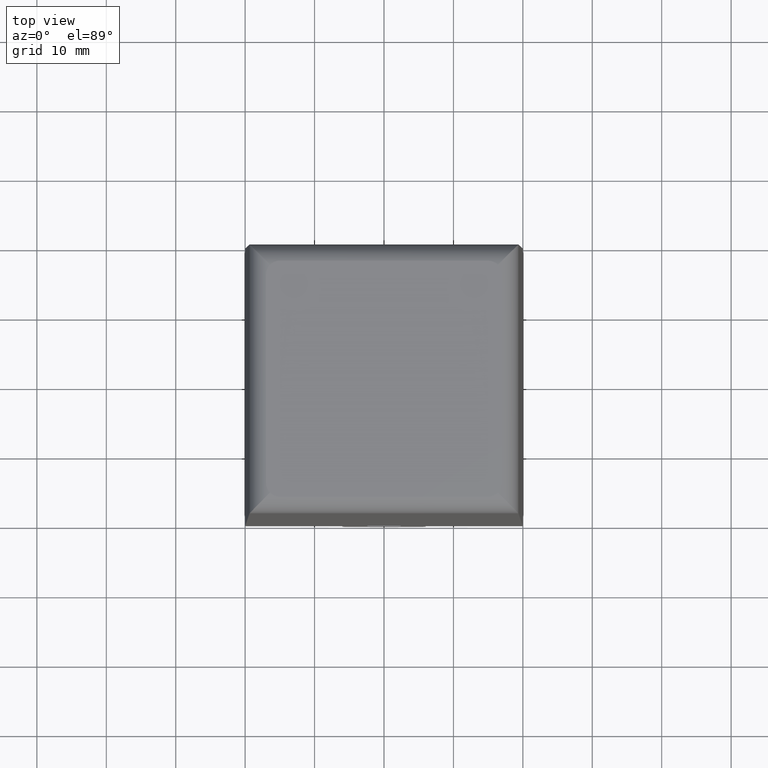
[diagram: clean part render]
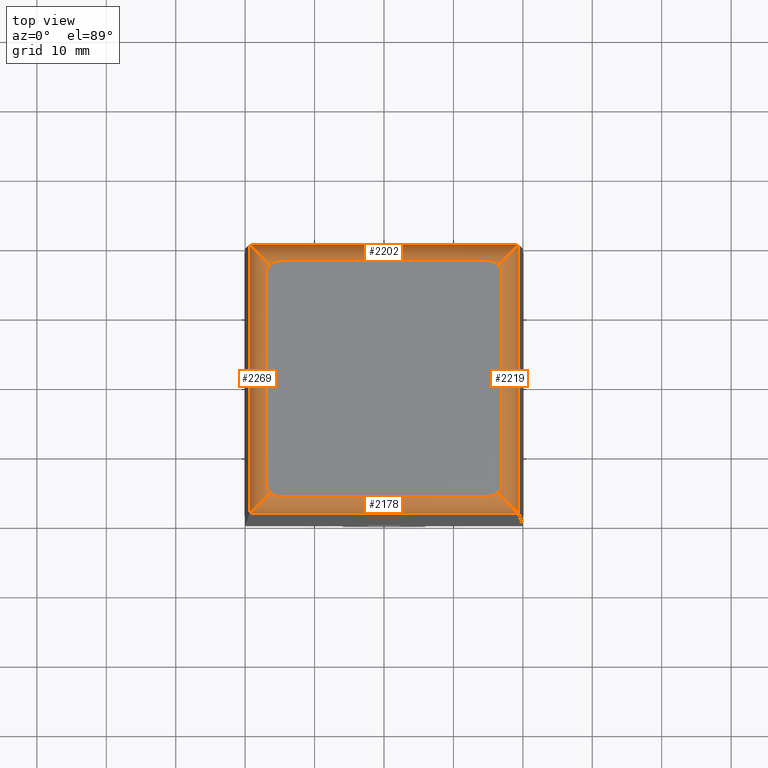
[diagram: same view with one multi-face feature highlighted, each face labeled with its STEP entity id]
A machine part, top view. The highlighted faces form ONE feature: a constant-radius fillet chain: 4 tangent blend faces with common blend radius 3 mm. The faces share edges in the B-rep.
Their STEP definitions:
[1] entity #2202 (Cylinder):
#199=CARTESIAN_POINT('',(16.376775983391202,16.376775983369143,68.238724886063693));
#200=VERTEX_POINT('',#199);
#201=CARTESIAN_POINT('',(-16.376775983404361,16.376775983369143,68.238724886060965));
#202=VERTEX_POINT('',#201);
#203=CARTESIAN_POINT('',(16.376775983391198,16.376775983369157,68.238724886063821));
#204=DIRECTION('',(-1.0,0.0,0.0));
#205=VECTOR('',#204,32.753551966795555);
#206=LINE('',#203,#205);
#207=EDGE_CURVE('',#200,#202,#206,.T.);
#2123=CARTESIAN_POINT('',(-19.376655419923193,19.376655419889271,65.265620356871992));
#2124=VERTEX_POINT('',#2123);
#2131=CARTESIAN_POINT('',(19.376655419910481,19.376655419889271,65.265620356875402));
#2132=VERTEX_POINT('',#2131);
#2133=CARTESIAN_POINT('',(19.376655419910481,19.376655419889733,65.265620356875345));
#2134=DIRECTION('',(-1.0,0.0,0.0));
#2135=VECTOR('',#2134,38.753310839833674);
#2136=LINE('',#2133,#2135);
#2137=EDGE_CURVE('',#2132,#2124,#2136,.T.);
#2179=CARTESIAN_POINT('',(19.999999999994916,16.376775983370049,65.238724886064148));
#2180=DIRECTION('',(-1.0,4.196099E-015,-8.877621E-014));
#2181=DIRECTION('',(-6.010007E-014,0.703929983401233,0.710269370357993));
#2182=AXIS2_PLACEMENT_3D('',#2179,#2180,#2181);
#2183=CYLINDRICAL_SURFACE('',#2182,2.999999999999969);
#2184=CARTESIAN_POINT('',(16.376775983391493,16.376775983370049,65.238724886063920));
#2185=DIRECTION('',(-0.707106781186540,0.707106781186555,2.162687E-013));
#2186=DIRECTION('',(0.707106781186555,0.707106781186540,3.417143E-013));
#2187=AXIS2_PLACEMENT_3D('',#2184,#2185,#2186);
#2188=ELLIPSE('',#2187,4.242640687119272,2.999999999999970);
#2189=EDGE_CURVE('',#200,#2132,#2188,.T.);
#2190=ORIENTED_EDGE('',*,*,#2189,.T.);
#2191=ORIENTED_EDGE('',*,*,#2137,.T.);
#2192=CARTESIAN_POINT('',(-16.376775983404055,16.376775983370504,65.238724886060965));
#2193=DIRECTION('',(0.707106781186546,0.707106781186550,3.418194E-013));
#2194=DIRECTION('',(-0.707106781186550,0.707106781186545,2.161658E-013));
#2195=AXIS2_PLACEMENT_3D('',#2192,#2193,#2194);
#2196=ELLIPSE('',#2195,4.242640687119272,2.999999999999970);
#2197=EDGE_CURVE('',#2124,#202,#2196,.T.);
#2198=ORIENTED_EDGE('',*,*,#2197,.T.);
#2199=ORIENTED_EDGE('',*,*,#207,.F.);
#2200=EDGE_LOOP('',(#2190,#2191,#2198,#2199));
#2201=FACE_OUTER_BOUND('',#2200,.T.);
#2202=ADVANCED_FACE('',(#2201),#2183,.T.);
[2] entity #2219 (Cylinder):
#199=CARTESIAN_POINT('',(16.376775983391202,16.376775983369143,68.238724886063693));
#200=VERTEX_POINT('',#199);
#217=CARTESIAN_POINT('',(16.376775983391166,-16.376775983426704,68.238724886050989));
#218=VERTEX_POINT('',#217);
#225=CARTESIAN_POINT('',(16.376775983391102,-16.376775983426704,68.238724886051074));
#226=DIRECTION('',(4.121786E-015,1.0,3.943898E-013));
#227=VECTOR('',#226,32.753551966795847);
#228=LINE('',#225,#227);
#229=EDGE_CURVE('',#218,#200,#228,.T.);
#1834=CARTESIAN_POINT('',(19.376655419910524,-19.376655419944562,65.265620356859998));
#1835=VERTEX_POINT('',#1834);
#2131=CARTESIAN_POINT('',(19.376655419910481,19.376655419889271,65.265620356875402));
#2132=VERTEX_POINT('',#2131);
#2160=CARTESIAN_POINT('',(16.376775983391465,-16.376775983425343,65.238724886050989));
#2161=DIRECTION('',(-0.707106781186547,-0.707106781186548,-3.418194E-013));
#2162=DIRECTION('',(0.707106781186548,-0.707106781186547,-2.162198E-013));
#2163=AXIS2_PLACEMENT_3D('',#2160,#2161,#2162);
#2164=ELLIPSE('',#2163,4.242640687119264,2.999999999999970);
#2165=EDGE_CURVE('',#1835,#218,#2164,.T.);
#2184=CARTESIAN_POINT('',(16.376775983391493,16.376775983370049,65.238724886063920));
#2185=DIRECTION('',(-0.707106781186540,0.707106781186555,2.162687E-013));
#2186=DIRECTION('',(0.707106781186555,0.707106781186540,3.417143E-013));
#2187=AXIS2_PLACEMENT_3D('',#2184,#2185,#2186);
#2188=ELLIPSE('',#2187,4.242640687119272,2.999999999999970);
#2189=EDGE_CURVE('',#200,#2132,#2188,.T.);
#2203=CARTESIAN_POINT('',(16.376775983391386,-20.000000000027647,65.238724886049638));
#2204=DIRECTION('',(4.134889E-015,1.0,3.946290E-013));
#2205=DIRECTION('',(0.703929983401451,-2.832032E-013,0.710269370357777));
#2206=AXIS2_PLACEMENT_3D('',#2203,#2204,#2205);
#2207=CYLINDRICAL_SURFACE('',#2206,2.999999999999969);
#2208=ORIENTED_EDGE('',*,*,#2189,.F.);
#2209=ORIENTED_EDGE('',*,*,#229,.F.);
#2210=ORIENTED_EDGE('',*,*,#2165,.F.);
#2211=CARTESIAN_POINT('',(19.376655419910406,-19.376655419944562,65.265620356860012));
#2212=DIRECTION('',(4.125380E-015,1.0,3.945696E-013));
#2213=VECTOR('',#2212,38.753310839833837);
#2214=LINE('',#2211,#2213);
#2215=EDGE_CURVE('',#1835,#2132,#2214,.T.);
#2216=ORIENTED_EDGE('',*,*,#2215,.T.);
#2217=EDGE_LOOP('',(#2208,#2209,#2210,#2216));
#2218=FACE_OUTER_BOUND('',#2217,.T.);
#2219=ADVANCED_FACE('',(#2218),#2207,.T.);
[3] entity #2178 (Cylinder):
#209=CARTESIAN_POINT('',(-16.376775983404382,-16.376775983426249,68.238724886048033));
#210=VERTEX_POINT('',#209);
#217=CARTESIAN_POINT('',(16.376775983391166,-16.376775983426704,68.238724886050989));
#218=VERTEX_POINT('',#217);
#219=CARTESIAN_POINT('',(16.376775983391166,-16.376775983426690,68.238724886051116));
#220=DIRECTION('',(-1.0,0.0,0.0));
#221=VECTOR('',#220,32.753551966795548);
#222=LINE('',#219,#221);
#223=EDGE_CURVE('',#218,#210,#222,.T.);
#1834=CARTESIAN_POINT('',(19.376655419910524,-19.376655419944562,65.265620356859998));
#1835=VERTEX_POINT('',#1834);
#1842=CARTESIAN_POINT('',(-19.376655419923157,-19.376655419944111,65.265620356856587));
#1843=VERTEX_POINT('',#1842);
#1844=CARTESIAN_POINT('',(19.376655419910524,-19.376655419944559,65.265620356860168));
#1845=DIRECTION('',(-1.0,0.0,0.0));
#1846=VECTOR('',#1845,38.753310839833681);
#1847=LINE('',#1844,#1846);
#1848=EDGE_CURVE('',#1835,#1843,#1847,.T.);
#2155=CARTESIAN_POINT('',(19.999999999993971,-16.376775983425343,65.238724886051216));
#2156=DIRECTION('',(-1.0,4.196099E-015,-8.877621E-014));
#2157=DIRECTION('',(-6.600738E-014,-0.703929983401767,0.710269370357464));
#2158=AXIS2_PLACEMENT_3D('',#2155,#2156,#2157);
#2159=CYLINDRICAL_SURFACE('',#2158,2.999999999999969);
#2160=CARTESIAN_POINT('',(16.376775983391465,-16.376775983425343,65.238724886050989));
#2161=DIRECTION('',(-0.707106781186547,-0.707106781186548,-3.418194E-013));
#2162=DIRECTION('',(0.707106781186548,-0.707106781186547,-2.162198E-013));
#2163=AXIS2_PLACEMENT_3D('',#2160,#2161,#2162);
#2164=ELLIPSE('',#2163,4.242640687119264,2.999999999999970);
#2165=EDGE_CURVE('',#1835,#218,#2164,.T.);
#2166=ORIENTED_EDGE('',*,*,#2165,.T.);
#2167=ORIENTED_EDGE('',*,*,#223,.T.);
#2168=CARTESIAN_POINT('',(-16.376775983404084,-16.376775983424888,65.238724886048260));
#2169=DIRECTION('',(0.707106781186541,-0.707106781186554,-2.162679E-013));
#2170=DIRECTION('',(-0.707106781186554,-0.707106781186541,-3.417675E-013));
#2171=AXIS2_PLACEMENT_3D('',#2168,#2169,#2170);
#2172=ELLIPSE('',#2171,4.242640687119264,2.999999999999969);
#2173=EDGE_CURVE('',#210,#1843,#2172,.T.);
#2174=ORIENTED_EDGE('',*,*,#2173,.T.);
#2175=ORIENTED_EDGE('',*,*,#1848,.F.);
#2176=EDGE_LOOP('',(#2166,#2167,#2174,#2175));
#2177=FACE_OUTER_BOUND('',#2176,.T.);
#2178=ADVANCED_FACE('',(#2177),#2159,.T.);
[4] entity #2269 (Cylinder):
#201=CARTESIAN_POINT('',(-16.376775983404361,16.376775983369143,68.238724886060965));
#202=VERTEX_POINT('',#201);
#209=CARTESIAN_POINT('',(-16.376775983404382,-16.376775983426249,68.238724886048033));
#210=VERTEX_POINT('',#209);
#211=CARTESIAN_POINT('',(-16.376775983404446,-16.376775983426249,68.238724886047891));
#212=DIRECTION('',(4.121786E-015,1.0,3.943898E-013));
#213=VECTOR('',#212,32.753551966795392);
#214=LINE('',#211,#213);
#215=EDGE_CURVE('',#210,#202,#214,.T.);
#1842=CARTESIAN_POINT('',(-19.376655419923157,-19.376655419944111,65.265620356856587));
#1843=VERTEX_POINT('',#1842);
#2123=CARTESIAN_POINT('',(-19.376655419923193,19.376655419889271,65.265620356871992));
#2124=VERTEX_POINT('',#2123);
#2168=CARTESIAN_POINT('',(-16.376775983404084,-16.376775983424888,65.238724886048260));
#2169=DIRECTION('',(0.707106781186541,-0.707106781186554,-2.162679E-013));
#2170=DIRECTION('',(-0.707106781186554,-0.707106781186541,-3.417675E-013));
#2171=AXIS2_PLACEMENT_3D('',#2168,#2169,#2170);
#2172=ELLIPSE('',#2171,4.242640687119264,2.999999999999969);
#2173=EDGE_CURVE('',#210,#1843,#2172,.T.);
#2192=CARTESIAN_POINT('',(-16.376775983404055,16.376775983370504,65.238724886060965));
#2193=DIRECTION('',(0.707106781186546,0.707106781186550,3.418194E-013));
#2194=DIRECTION('',(-0.707106781186550,0.707106781186545,2.161658E-013));
#2195=AXIS2_PLACEMENT_3D('',#2192,#2193,#2194);
#2196=ELLIPSE('',#2195,4.242640687119272,2.999999999999970);
#2197=EDGE_CURVE('',#2124,#202,#2196,.T.);
#2237=CARTESIAN_POINT('',(-19.376655419923267,-19.376655419944107,65.265620356856601));
#2238=DIRECTION('',(4.125380E-015,1.0,3.945696E-013));
#2239=VECTOR('',#2238,38.753310839833382);
#2240=LINE('',#2237,#2239);
#2241=EDGE_CURVE('',#1843,#2124,#2240,.T.);
#2258=CARTESIAN_POINT('',(-16.376775983404162,-20.000000000028106,65.238724886046910));
#2259=DIRECTION('',(4.134889E-015,1.0,3.946290E-013));
#2260=DIRECTION('',(-0.703929983401550,-2.773821E-013,0.710269370357679));
#2261=AXIS2_PLACEMENT_3D('',#2258,#2259,#2260);
#2262=CYLINDRICAL_SURFACE('',#2261,2.999999999999969);
#2263=ORIENTED_EDGE('',*,*,#2197,.F.);
#2264=ORIENTED_EDGE('',*,*,#2241,.F.);
#2265=ORIENTED_EDGE('',*,*,#2173,.F.);
#2266=ORIENTED_EDGE('',*,*,#215,.T.);
#2267=EDGE_LOOP('',(#2263,#2264,#2265,#2266));
#2268=FACE_OUTER_BOUND('',#2267,.T.);
#2269=ADVANCED_FACE('',(#2268),#2262,.T.);